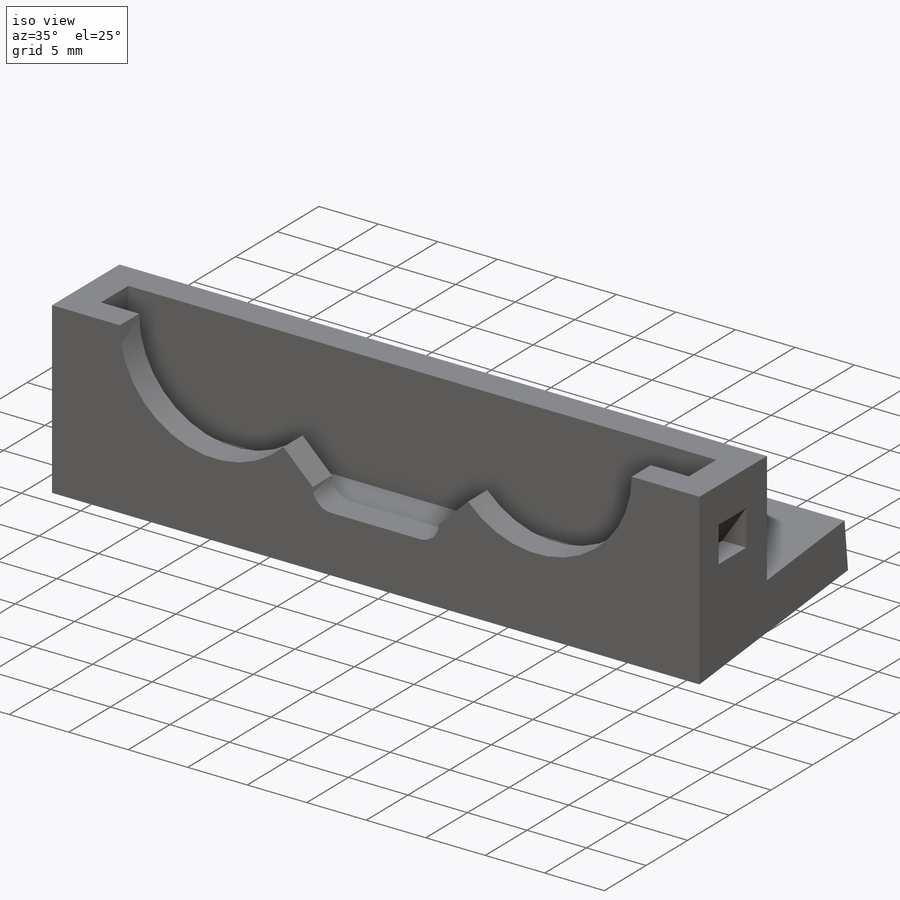
[diagram: iso view]
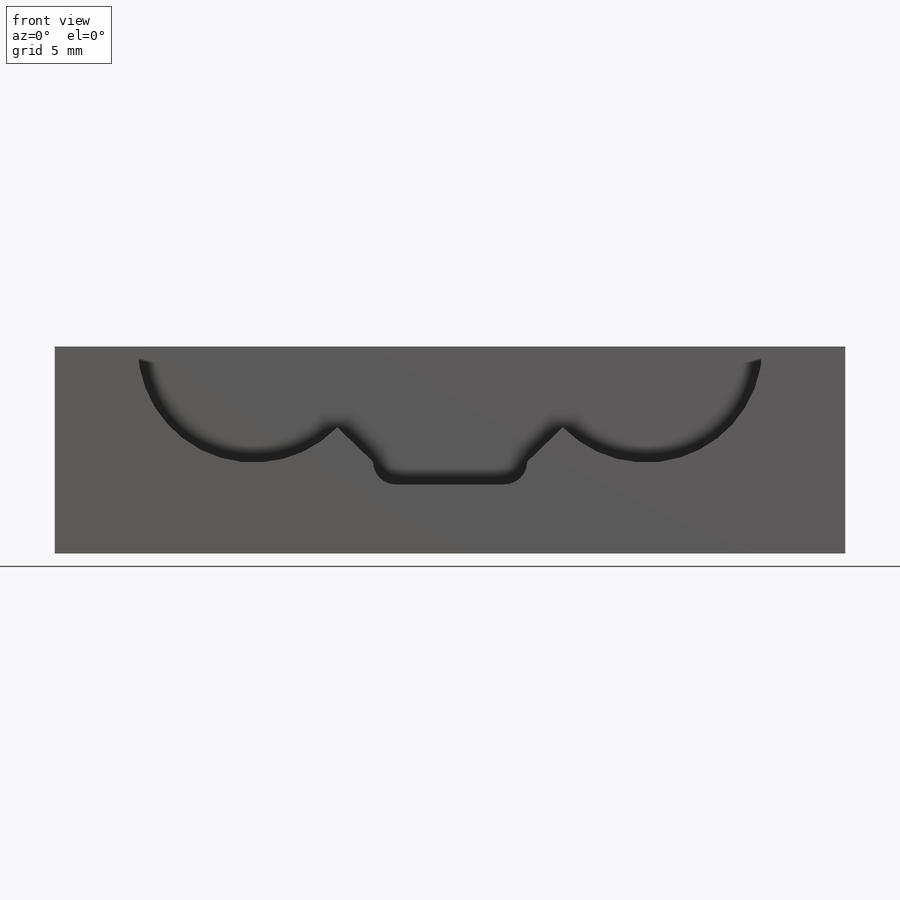
[diagram: front view]
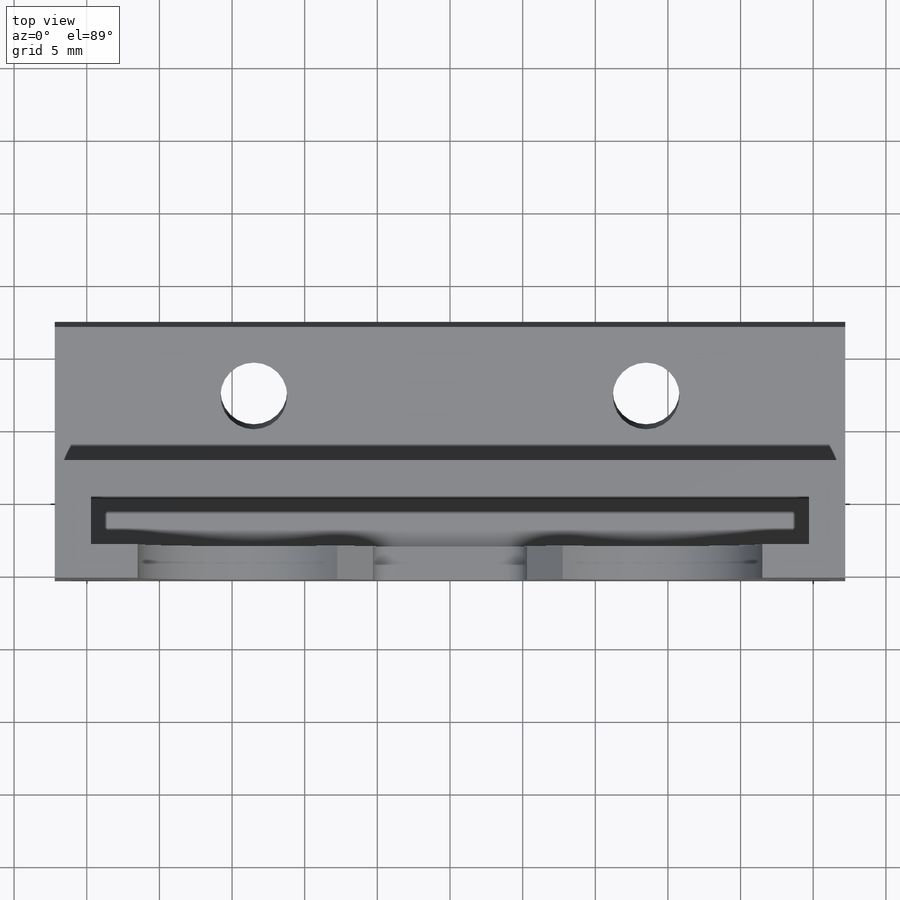
[diagram: top view]
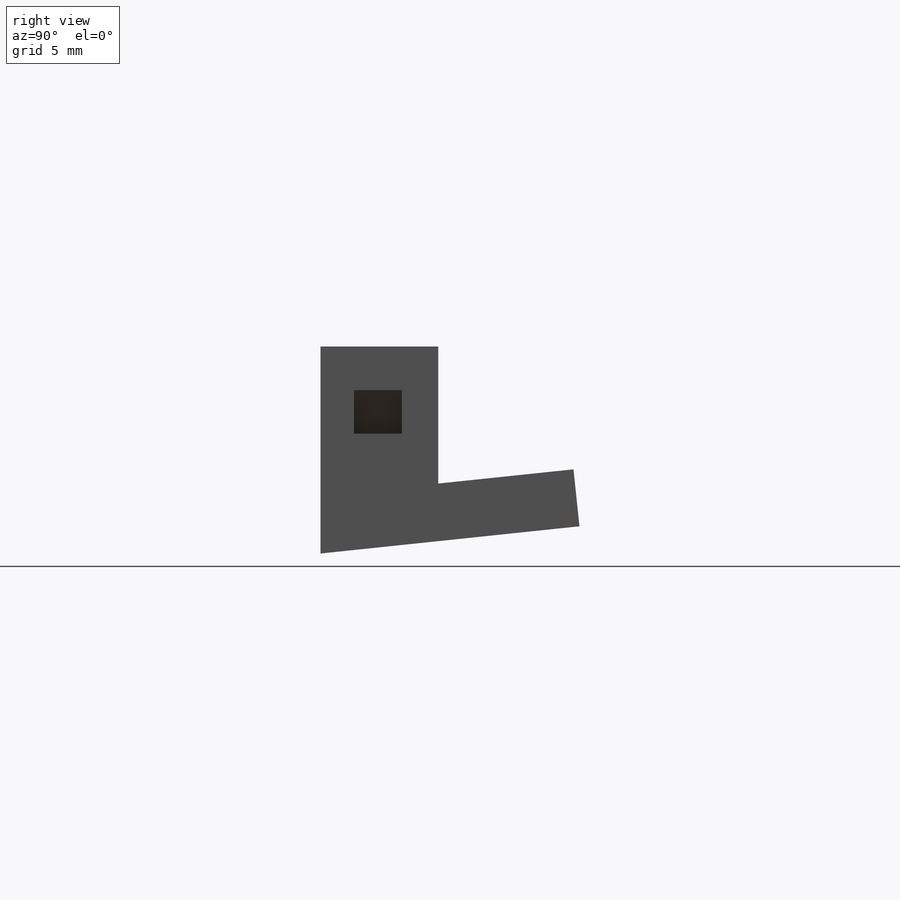
[diagram: right view]
SOLIDWORKS PART (.sldprt)
format: sldprt  version: not decoded by parser v0  size: 346,112 bytes
history: native  units: mm
features: sketch x13, cut_extrude x8, extrude x5, material x1 (+11 scaffold rows collapsed)
feature tree (38):
  scaffold x11  (default folders/planes/origin — collapsed)
  material  "Material <not specified>"
  sketch  "Sketch2"  dims[D1=54.4mm]
  extrude  "Boss-Extrude1"  Depth=4mm
  sketch  "Sketch3"  dims[D1=2.3mm]
  extrude  "Boss-Extrude2"  Depth=54.4mm
  sketch  "Sketch4"  dims[c1.D1=~3.113367mm c1.D5=2.0mm c2.D1=27.0mm c2.D2=13.7mm c2.D3=5.5mm c2.D4=5.5mm]
  cut_extrude  "Cut-Extrude1"  Depth=45mm
  sketch  "Sketch6"  dims[D3=1.55mm D1=4.75mm D2=7.5mm D4=0.0mm]
  cut_extrude  "Cut-Extrude3"  Depth=10mm
  sketch  "Sketch5"  dims[D1=14.25mm D2=27.0mm D3=14.25mm D4=13.7mm]
  cut_extrude  "Cut-Extrude2"  Depth=10mm
  sketch  "Sketch7"
  cut_extrude  "Cut-Extrude4"  Depth=10mm
  sketch  "Sketch8"  dims[D1=0.0mm D2=3.3mm D3=2.5mm D4=10.25mm]
  extrude  "Boss-Extrude3"  Depth=54.4mm
  sketch  "Sketch9"  dims[D1=0.0mm D2=0.0mm D3=0.0mm D4=2.5mm D5=0.0mm D6=0.0mm D7=0.0mm D8=2.5mm]
  extrude  "Boss-Extrude4"  Depth=10.25mm
  sketch  "Sketch10"  dims[D1=3.0mm]
  cut_extrude  "Cut-Extrude5"  Depth=3.3mm
  sketch  "Sketch11"
  cut_extrude  "Cut-Extrude6"  Depth=10mm
  sketch  "Sketch12"  dims[D1=174.0deg]
  extrude  "Boss-Extrude5"  Depth=54.4mm
  sketch  "Sketch13"
  cut_extrude  "Cut-Extrude7"  Depth=54.4mm
  sketch  "Sketch14"
  cut_extrude  "Cut-Extrude8"  Depth=54.4mm
decode coverage: 22 of 26 modeling features carry decoded parameters
note: ~ marks probable driven/reference dimensions
note: suppression state not decoded; provenance and decode notes live in map.json
